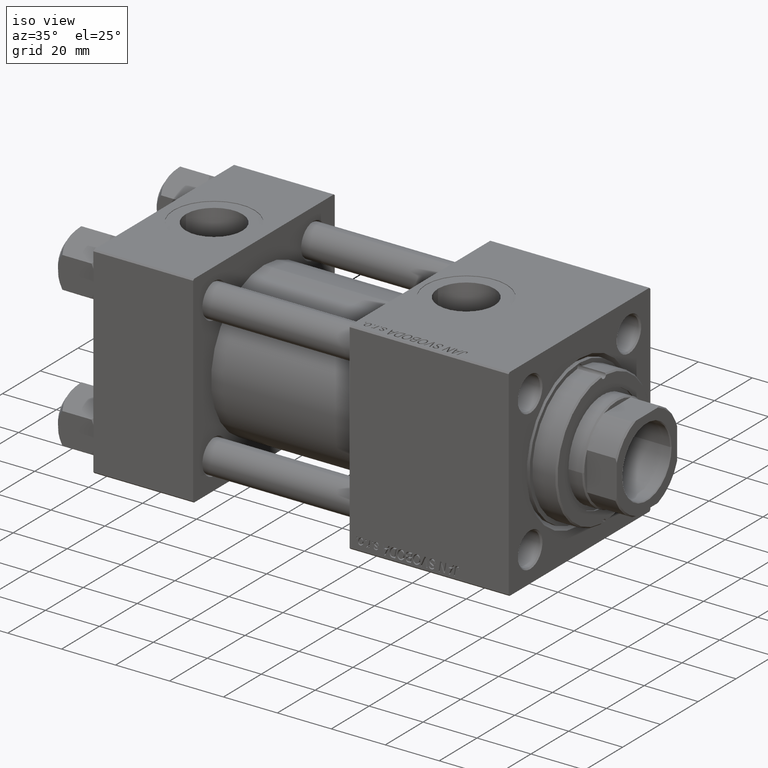
[diagram: clean part render]
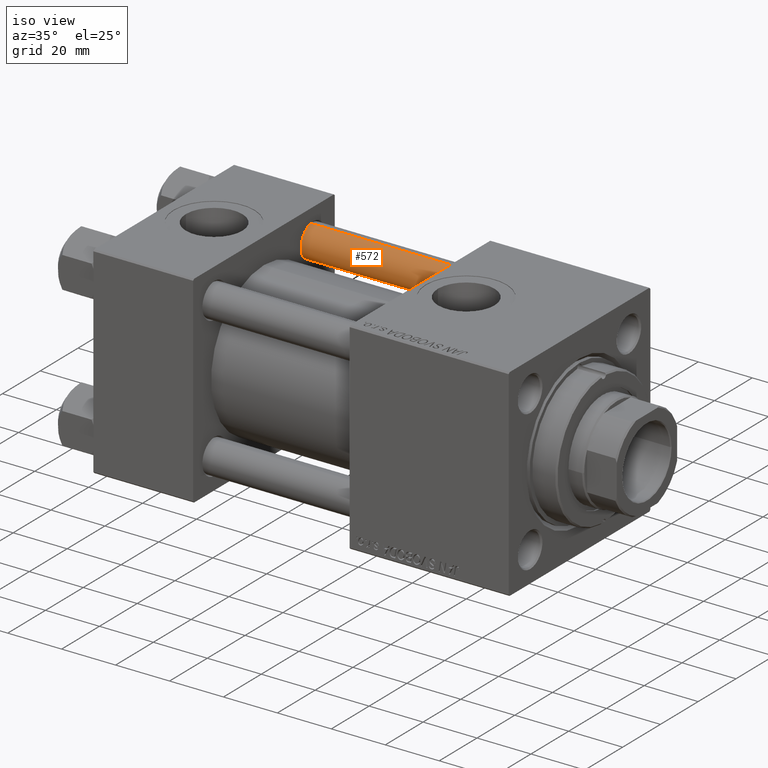
[diagram: same view with one face highlighted and labeled with its STEP entity id]
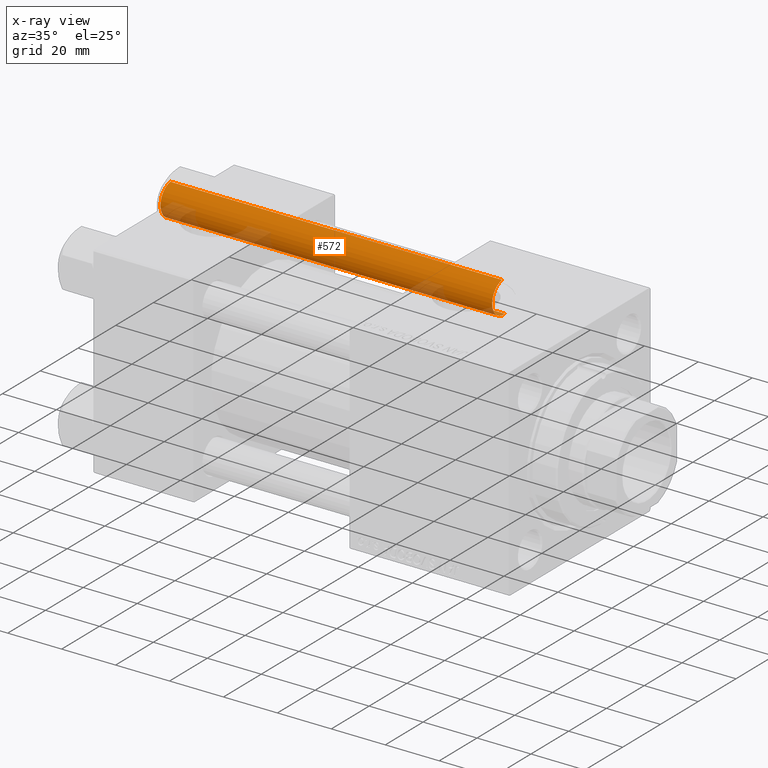
[diagram: x-ray of the same camera — body ghosted, the highlighted face saturated]
A machine part, iso view. The second image highlights one B-rep face of the part: STEP entity #572.
The next image is the same camera in x-ray: the body ghosted, the highlighted face saturated — about 12% of this face is hidden behind the body in this view.
In plain terms, the highlighted cylindrical surface (edge-blend (fillet) strip) has radius 6 mm, axis along (-1, 0, 0).
Its self-contained STEP definition (entity closure, byte-faithful):
#572 = ADVANCED_FACE ( 'NONE', ( #20110 ), #16528, .T. ) ;
#2013 = CARTESIAN_POINT ( 'NONE',  ( 0.000000000000000000, 0.000000000000000000, 0.4999999999999865663 ) ) ;
#2648 = LINE ( 'NONE', #29931, #25020 ) ;
#3009 = ORIENTED_EDGE ( 'NONE', *, *, #49806, .T. ) ;
#3907 = CARTESIAN_POINT ( 'NONE',  ( 6.000000000000000888, 7.347880794884120722E-16, 123.5000000000000426 ) ) ;
#4032 = AXIS2_PLACEMENT_3D ( 'NONE', #20351, #32100, #28257 ) ;
#5835 = DIRECTION ( 'NONE',  ( 1.000000000000000000, 0.000000000000000000, 0.000000000000000000 ) ) ;
#9635 = AXIS2_PLACEMENT_3D ( 'NONE', #44786, #32808, #48355 ) ;
#10539 = DIRECTION ( 'NONE',  ( -0.000000000000000000, -0.000000000000000000, -1.000000000000000000 ) ) ;
#12030 = CARTESIAN_POINT ( 'NONE',  ( 6.000000000000000888, 7.347880794884120722E-16, 0.4999999999999865663 ) ) ;
#13464 = DIRECTION ( 'NONE',  ( -0.000000000000000000, -0.000000000000000000, 1.000000000000000000 ) ) ;
#16528 = CYLINDRICAL_SURFACE ( 'NONE', #4032, 6.000000000000000888 ) ;
#17337 = VECTOR ( 'NONE', #47197, 1000.000000000000000 ) ;
#19930 = CARTESIAN_POINT ( 'NONE',  ( -6.000000000000000888, 0.000000000000000000, 0.4999999999999865663 ) ) ;
#20009 = VERTEX_POINT ( 'NONE', #19930 ) ;
#20110 = FACE_OUTER_BOUND ( 'NONE', #33092, .T. ) ;
#20139 = CARTESIAN_POINT ( 'NONE',  ( -6.000000000000000888, 0.000000000000000000, 123.5000000000000426 ) ) ;
#20351 = CARTESIAN_POINT ( 'NONE',  ( 0.000000000000000000, 0.000000000000000000, 124.0000000000000000 ) ) ;
#21285 = EDGE_CURVE ( 'NONE', #20009, #28270, #34081, .T. ) ;
#21631 = EDGE_CURVE ( 'NONE', #24895, #50101, #25105, .T. ) ;
#22866 = ORIENTED_EDGE ( 'NONE', *, *, #21285, .T. ) ;
#24364 = ORIENTED_EDGE ( 'NONE', *, *, #37131, .F. ) ;
#24895 = VERTEX_POINT ( 'NONE', #3907 ) ;
#25020 = VECTOR ( 'NONE', #10539, 1000.000000000000000 ) ;
#25105 = CIRCLE ( 'NONE', #9635, 6.000000000000000888 ) ;
#28257 = DIRECTION ( 'NONE',  ( -1.000000000000000000, 0.000000000000000000, 0.000000000000000000 ) ) ;
#28270 = VERTEX_POINT ( 'NONE', #12030 ) ;
#29931 = CARTESIAN_POINT ( 'NONE',  ( -6.000000000000000888, 0.000000000000000000, 124.0000000000000000 ) ) ;
#30205 = ORIENTED_EDGE ( 'NONE', *, *, #21631, .T. ) ;
#32100 = DIRECTION ( 'NONE',  ( -0.000000000000000000, -0.000000000000000000, -1.000000000000000000 ) ) ;
#32808 = DIRECTION ( 'NONE',  ( 0.000000000000000000, 0.000000000000000000, -1.000000000000000000 ) ) ;
#33092 = EDGE_LOOP ( 'NONE', ( #24364, #30205, #3009, #22866 ) ) ;
#34081 = CIRCLE ( 'NONE', #37321, 6.000000000000000888 ) ;
#37131 = EDGE_CURVE ( 'NONE', #24895, #28270, #38099, .T. ) ;
#37321 = AXIS2_PLACEMENT_3D ( 'NONE', #2013, #13464, #5835 ) ;
#38099 = LINE ( 'NONE', #50078, #17337 ) ;
#44786 = CARTESIAN_POINT ( 'NONE',  ( 0.000000000000000000, 0.000000000000000000, 123.5000000000000426 ) ) ;
#47197 = DIRECTION ( 'NONE',  ( -0.000000000000000000, -0.000000000000000000, -1.000000000000000000 ) ) ;
#48355 = DIRECTION ( 'NONE',  ( 1.000000000000000000, 0.000000000000000000, 0.000000000000000000 ) ) ;
#49806 = EDGE_CURVE ( 'NONE', #50101, #20009, #2648, .T. ) ;
#50078 = CARTESIAN_POINT ( 'NONE',  ( 6.000000000000000888, 7.347880794884120722E-16, 124.0000000000000000 ) ) ;
#50101 = VERTEX_POINT ( 'NONE', #20139 ) ;